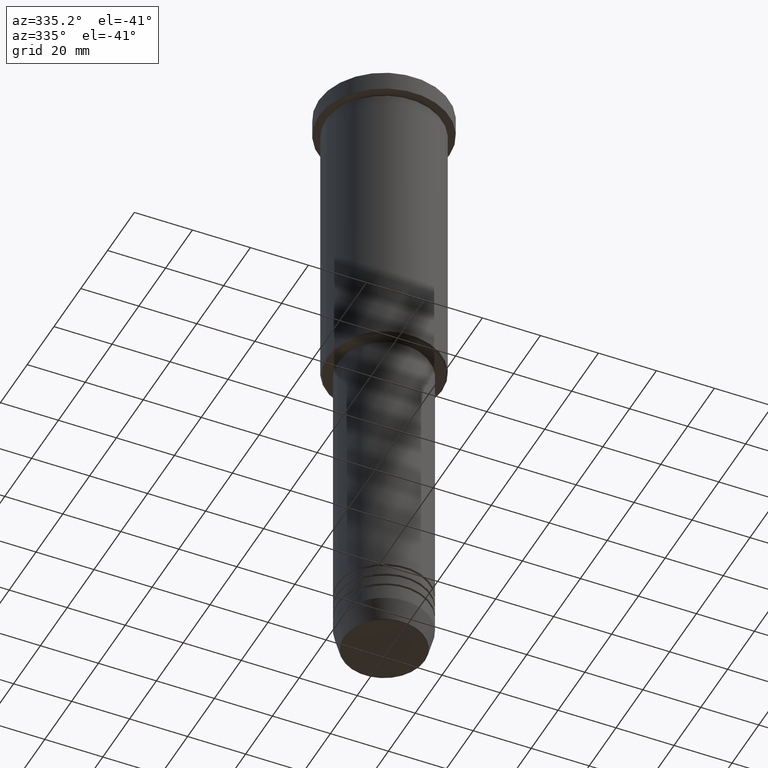
[diagram: clean part render]
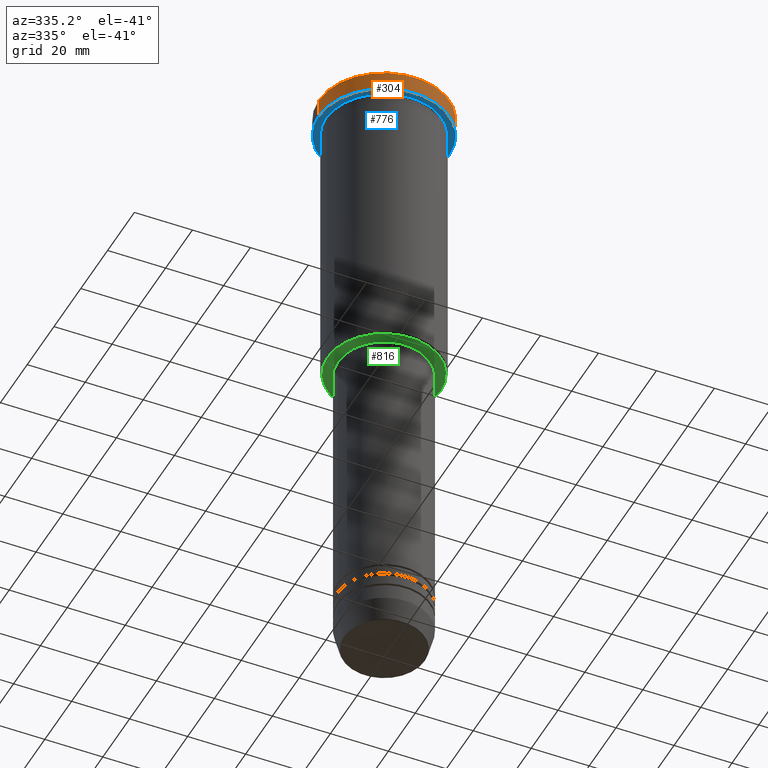
[diagram: same view with three faces highlighted in distinct colors, each labeled with its STEP entity id]
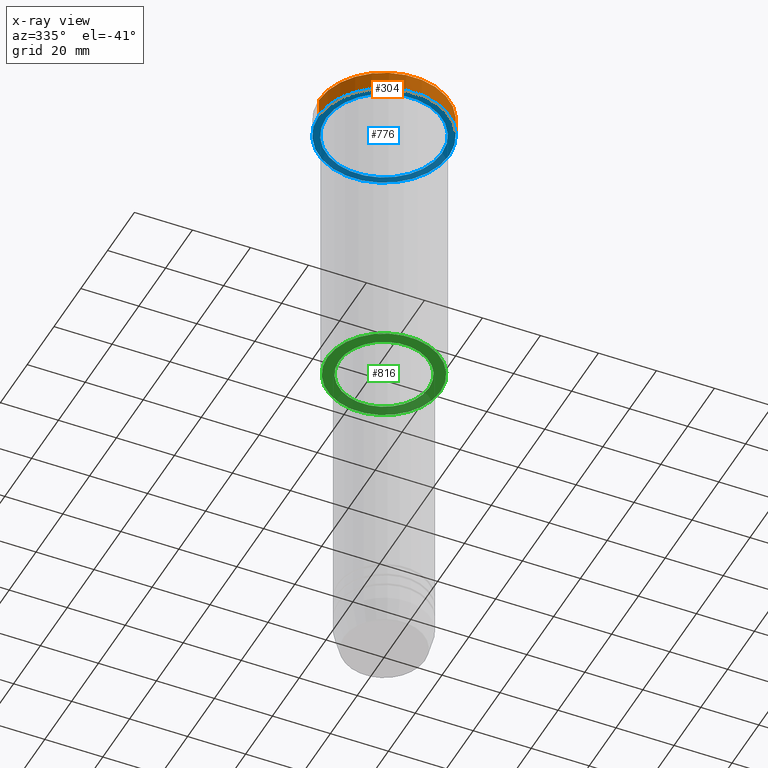
[diagram: x-ray of the same camera — body ghosted, the three highlighted faces saturated]
A machine part, auxiliary view with three faces highlighted in distinct colors.
The next image is the same camera in x-ray (body ghosted, the three faces saturated) — at least one of them is partly hidden behind the body in this view.
Their STEP definitions:

[orange] entity #304 — the highlighted cylindrical surface (partial cylindrical patch) has radius 22.5 mm, axis along (-0, -0, 1).
#2 = EDGE_LOOP ( 'NONE', ( #83, #558, #609, #761 ) ) ;
#19 = CARTESIAN_POINT ( 'NONE',  ( -22.50000000000000000, 2.755455298081544778E-15, -0.5000000000000213163 ) ) ;
#47 = CARTESIAN_POINT ( 'NONE',  ( 22.50000000000000000, 0.000000000000000000, 0.000000000000000000 ) ) ;
#83 = ORIENTED_EDGE ( 'NONE', *, *, #412, .F. ) ;
#102 = AXIS2_PLACEMENT_3D ( 'NONE', #965, #243, #718 ) ;
#196 = CARTESIAN_POINT ( 'NONE',  ( -22.50000000000000000, 2.755455298081544778E-15, 0.000000000000000000 ) ) ;
#243 = DIRECTION ( 'NONE',  ( -0.000000000000000000, -0.000000000000000000, 1.000000000000000000 ) ) ;
#284 = EDGE_CURVE ( 'NONE', #623, #1142, #620, .T. ) ;
#304 = ADVANCED_FACE ( 'NONE', ( #795 ), #341, .T. ) ;
#317 = DIRECTION ( 'NONE',  ( 0.000000000000000000, 0.000000000000000000, -1.000000000000000000 ) ) ;
#341 = CYLINDRICAL_SURFACE ( 'NONE', #392, 22.50000000000000000 ) ;
#392 = AXIS2_PLACEMENT_3D ( 'NONE', #1073, #608, #525 ) ;
#412 = EDGE_CURVE ( 'NONE', #623, #1087, #665, .T. ) ;
#417 = CIRCLE ( 'NONE', #435, 22.50000000000000000 ) ;
#424 = CARTESIAN_POINT ( 'NONE',  ( 22.50000000000000000, 0.000000000000000000, -6.999999999999995559 ) ) ;
#435 = AXIS2_PLACEMENT_3D ( 'NONE', #496, #317, #586 ) ;
#496 = CARTESIAN_POINT ( 'NONE',  ( 0.000000000000000000, 0.000000000000000000, -0.5000000000000213163 ) ) ;
#525 = DIRECTION ( 'NONE',  ( 1.000000000000000000, 0.000000000000000000, 0.000000000000000000 ) ) ;
#545 = DIRECTION ( 'NONE',  ( -0.000000000000000000, -0.000000000000000000, 1.000000000000000000 ) ) ;
#558 = ORIENTED_EDGE ( 'NONE', *, *, #284, .T. ) ;
#586 = DIRECTION ( 'NONE',  ( 1.000000000000000000, 0.000000000000000000, 0.000000000000000000 ) ) ;
#608 = DIRECTION ( 'NONE',  ( -0.000000000000000000, -0.000000000000000000, 1.000000000000000000 ) ) ;
#609 = ORIENTED_EDGE ( 'NONE', *, *, #1163, .T. ) ;
#620 = CIRCLE ( 'NONE', #102, 22.50000000000000000 ) ;
#623 = VERTEX_POINT ( 'NONE', #693 ) ;
#665 = LINE ( 'NONE', #196, #852 ) ;
#693 = CARTESIAN_POINT ( 'NONE',  ( -22.50000000000000000, 2.755455298081544778E-15, -6.999999999999995559 ) ) ;
#718 = DIRECTION ( 'NONE',  ( 1.000000000000000000, 0.000000000000000000, 0.000000000000000000 ) ) ;
#761 = ORIENTED_EDGE ( 'NONE', *, *, #1015, .T. ) ;
#795 = FACE_OUTER_BOUND ( 'NONE', #2, .T. ) ;
#852 = VECTOR ( 'NONE', #545, 1000.000000000000000 ) ;
#965 = CARTESIAN_POINT ( 'NONE',  ( 0.000000000000000000, 0.000000000000000000, -6.999999999999995559 ) ) ;
#1015 = EDGE_CURVE ( 'NONE', #1179, #1087, #417, .T. ) ;
#1073 = CARTESIAN_POINT ( 'NONE',  ( 0.000000000000000000, 0.000000000000000000, 0.000000000000000000 ) ) ;
#1080 = CARTESIAN_POINT ( 'NONE',  ( 22.50000000000000000, 0.000000000000000000, -0.5000000000000213163 ) ) ;
#1087 = VERTEX_POINT ( 'NONE', #19 ) ;
#1142 = VERTEX_POINT ( 'NONE', #424 ) ;
#1163 = EDGE_CURVE ( 'NONE', #1142, #1179, #1180, .T. ) ;
#1173 = VECTOR ( 'NONE', #1175, 1000.000000000000000 ) ;
#1175 = DIRECTION ( 'NONE',  ( -0.000000000000000000, -0.000000000000000000, 1.000000000000000000 ) ) ;
#1179 = VERTEX_POINT ( 'NONE', #1080 ) ;
#1180 = LINE ( 'NONE', #47, #1173 ) ;

[blue] entity #776 — the highlighted planar face has unit normal (0, 0, -1).
#5 = AXIS2_PLACEMENT_3D ( 'NONE', #875, #862, #775 ) ;
#94 = CIRCLE ( 'NONE', #5, 22.50000000000000000 ) ;
#102 = AXIS2_PLACEMENT_3D ( 'NONE', #965, #243, #718 ) ;
#137 = ORIENTED_EDGE ( 'NONE', *, *, #1178, .T. ) ;
#142 = AXIS2_PLACEMENT_3D ( 'NONE', #538, #366, #547 ) ;
#163 = ORIENTED_EDGE ( 'NONE', *, *, #284, .F. ) ;
#186 = ORIENTED_EDGE ( 'NONE', *, *, #216, .F. ) ;
#216 = EDGE_CURVE ( 'NONE', #1142, #623, #94, .T. ) ;
#242 = DIRECTION ( 'NONE',  ( -1.000000000000000000, 0.000000000000000000, -0.000000000000000000 ) ) ;
#243 = DIRECTION ( 'NONE',  ( -0.000000000000000000, -0.000000000000000000, 1.000000000000000000 ) ) ;
#246 = DIRECTION ( 'NONE',  ( 0.000000000000000000, 0.000000000000000000, -1.000000000000000000 ) ) ;
#257 = AXIS2_PLACEMENT_3D ( 'NONE', #290, #999, #648 ) ;
#284 = EDGE_CURVE ( 'NONE', #623, #1142, #620, .T. ) ;
#290 = CARTESIAN_POINT ( 'NONE',  ( 0.000000000000000000, 0.000000000000000000, -6.999999999999995559 ) ) ;
#366 = DIRECTION ( 'NONE',  ( -0.000000000000000000, -0.000000000000000000, 1.000000000000000000 ) ) ;
#408 = VERTEX_POINT ( 'NONE', #473 ) ;
#424 = CARTESIAN_POINT ( 'NONE',  ( 22.50000000000000000, 0.000000000000000000, -6.999999999999995559 ) ) ;
#430 = ORIENTED_EDGE ( 'NONE', *, *, #475, .T. ) ;
#473 = CARTESIAN_POINT ( 'NONE',  ( -20.00000000000000000, 0.000000000000000000, -6.999999999999995559 ) ) ;
#475 = EDGE_CURVE ( 'NONE', #1152, #408, #1170, .T. ) ;
#508 = CIRCLE ( 'NONE', #142, 20.00000000000000000 ) ;
#524 = CARTESIAN_POINT ( 'NONE',  ( 0.000000000000000000, 22.50000000000000000, -6.999999999999995559 ) ) ;
#538 = CARTESIAN_POINT ( 'NONE',  ( 0.000000000000000000, 0.000000000000000000, -6.999999999999995559 ) ) ;
#547 = DIRECTION ( 'NONE',  ( -1.000000000000000000, 0.000000000000000000, 0.000000000000000000 ) ) ;
#616 = EDGE_LOOP ( 'NONE', ( #186, #163 ) ) ;
#620 = CIRCLE ( 'NONE', #102, 22.50000000000000000 ) ;
#623 = VERTEX_POINT ( 'NONE', #693 ) ;
#648 = DIRECTION ( 'NONE',  ( -1.000000000000000000, 0.000000000000000000, 0.000000000000000000 ) ) ;
#693 = CARTESIAN_POINT ( 'NONE',  ( -22.50000000000000000, 2.755455298081544778E-15, -6.999999999999995559 ) ) ;
#715 = FACE_OUTER_BOUND ( 'NONE', #616, .T. ) ;
#717 = EDGE_LOOP ( 'NONE', ( #137, #430 ) ) ;
#718 = DIRECTION ( 'NONE',  ( 1.000000000000000000, 0.000000000000000000, 0.000000000000000000 ) ) ;
#734 = CARTESIAN_POINT ( 'NONE',  ( 20.00000000000000000, 2.449293598294706513E-15, -6.999999999999995559 ) ) ;
#775 = DIRECTION ( 'NONE',  ( 1.000000000000000000, 0.000000000000000000, 0.000000000000000000 ) ) ;
#776 = ADVANCED_FACE ( 'NONE', ( #1150, #715 ), #1069, .T. ) ;
#862 = DIRECTION ( 'NONE',  ( -0.000000000000000000, -0.000000000000000000, 1.000000000000000000 ) ) ;
#875 = CARTESIAN_POINT ( 'NONE',  ( 0.000000000000000000, 0.000000000000000000, -6.999999999999995559 ) ) ;
#959 = AXIS2_PLACEMENT_3D ( 'NONE', #524, #246, #242 ) ;
#965 = CARTESIAN_POINT ( 'NONE',  ( 0.000000000000000000, 0.000000000000000000, -6.999999999999995559 ) ) ;
#999 = DIRECTION ( 'NONE',  ( -0.000000000000000000, -0.000000000000000000, 1.000000000000000000 ) ) ;
#1069 = PLANE ( 'NONE',  #959 ) ;
#1142 = VERTEX_POINT ( 'NONE', #424 ) ;
#1150 = FACE_BOUND ( 'NONE', #717, .T. ) ;
#1152 = VERTEX_POINT ( 'NONE', #734 ) ;
#1170 = CIRCLE ( 'NONE', #257, 20.00000000000000000 ) ;
#1178 = EDGE_CURVE ( 'NONE', #408, #1152, #508, .T. ) ;

[green] entity #816 — the highlighted planar face has unit normal (0, 0, -1).
#52 = VERTEX_POINT ( 'NONE', #831 ) ;
#60 = CARTESIAN_POINT ( 'NONE',  ( 0.000000000000000000, 20.00000000000000355, -105.9999999999999858 ) ) ;
#80 = CARTESIAN_POINT ( 'NONE',  ( 19.49999999999993250, 0.000000000000000000, -105.9999999999999858 ) ) ;
#106 = DIRECTION ( 'NONE',  ( -0.000000000000000000, -0.000000000000000000, 1.000000000000000000 ) ) ;
#151 = FACE_BOUND ( 'NONE', #627, .T. ) ;
#190 = EDGE_CURVE ( 'NONE', #543, #1075, #972, .T. ) ;
#207 = DIRECTION ( 'NONE',  ( 0.000000000000000000, 0.000000000000000000, -1.000000000000000000 ) ) ;
#271 = ORIENTED_EDGE ( 'NONE', *, *, #190, .T. ) ;
#313 = AXIS2_PLACEMENT_3D ( 'NONE', #422, #207, #787 ) ;
#323 = DIRECTION ( 'NONE',  ( 0.000000000000000000, 0.000000000000000000, -1.000000000000000000 ) ) ;
#373 = DIRECTION ( 'NONE',  ( 1.000000000000000000, 0.000000000000000000, 0.000000000000000000 ) ) ;
#422 = CARTESIAN_POINT ( 'NONE',  ( 0.000000000000000000, 0.000000000000000000, -105.9999999999999858 ) ) ;
#436 = DIRECTION ( 'NONE',  ( -1.000000000000000000, 0.000000000000000000, -0.000000000000000000 ) ) ;
#463 = EDGE_LOOP ( 'NONE', ( #271, #497 ) ) ;
#472 = CIRCLE ( 'NONE', #723, 15.50000000000000000 ) ;
#476 = DIRECTION ( 'NONE',  ( 1.000000000000000000, 0.000000000000000000, 0.000000000000000000 ) ) ;
#486 = CARTESIAN_POINT ( 'NONE',  ( -19.49999999999993250, 2.418677428316018782E-15, -105.9999999999999858 ) ) ;
#497 = ORIENTED_EDGE ( 'NONE', *, *, #590, .T. ) ;
#523 = AXIS2_PLACEMENT_3D ( 'NONE', #919, #1096, #373 ) ;
#543 = VERTEX_POINT ( 'NONE', #80 ) ;
#561 = CARTESIAN_POINT ( 'NONE',  ( 0.000000000000000000, 0.000000000000000000, -105.9999999999999858 ) ) ;
#590 = EDGE_CURVE ( 'NONE', #1075, #543, #906, .T. ) ;
#591 = CARTESIAN_POINT ( 'NONE',  ( 15.50000000000000000, 0.000000000000000000, -105.9999999999999858 ) ) ;
#627 = EDGE_LOOP ( 'NONE', ( #628, #712 ) ) ;
#628 = ORIENTED_EDGE ( 'NONE', *, *, #896, .T. ) ;
#712 = ORIENTED_EDGE ( 'NONE', *, *, #963, .T. ) ;
#723 = AXIS2_PLACEMENT_3D ( 'NONE', #561, #106, #476 ) ;
#764 = CIRCLE ( 'NONE', #523, 15.50000000000000000 ) ;
#786 = DIRECTION ( 'NONE',  ( -1.000000000000000000, 0.000000000000000000, 0.000000000000000000 ) ) ;
#787 = DIRECTION ( 'NONE',  ( -1.000000000000000000, 0.000000000000000000, 0.000000000000000000 ) ) ;
#793 = PLANE ( 'NONE',  #1037 ) ;
#816 = ADVANCED_FACE ( 'NONE', ( #967, #151 ), #793, .T. ) ;
#831 = CARTESIAN_POINT ( 'NONE',  ( -15.50000000000000000, 1.898202538678397557E-15, -105.9999999999999858 ) ) ;
#896 = EDGE_CURVE ( 'NONE', #1167, #52, #764, .T. ) ;
#906 = CIRCLE ( 'NONE', #313, 19.49999999999993250 ) ;
#919 = CARTESIAN_POINT ( 'NONE',  ( 0.000000000000000000, 0.000000000000000000, -105.9999999999999858 ) ) ;
#963 = EDGE_CURVE ( 'NONE', #52, #1167, #472, .T. ) ;
#967 = FACE_OUTER_BOUND ( 'NONE', #463, .T. ) ;
#972 = CIRCLE ( 'NONE', #1129, 19.49999999999993250 ) ;
#1037 = AXIS2_PLACEMENT_3D ( 'NONE', #60, #1144, #436 ) ;
#1075 = VERTEX_POINT ( 'NONE', #486 ) ;
#1096 = DIRECTION ( 'NONE',  ( -0.000000000000000000, -0.000000000000000000, 1.000000000000000000 ) ) ;
#1128 = CARTESIAN_POINT ( 'NONE',  ( 0.000000000000000000, 0.000000000000000000, -105.9999999999999858 ) ) ;
#1129 = AXIS2_PLACEMENT_3D ( 'NONE', #1128, #323, #786 ) ;
#1144 = DIRECTION ( 'NONE',  ( 0.000000000000000000, 0.000000000000000000, -1.000000000000000000 ) ) ;
#1167 = VERTEX_POINT ( 'NONE', #591 ) ;